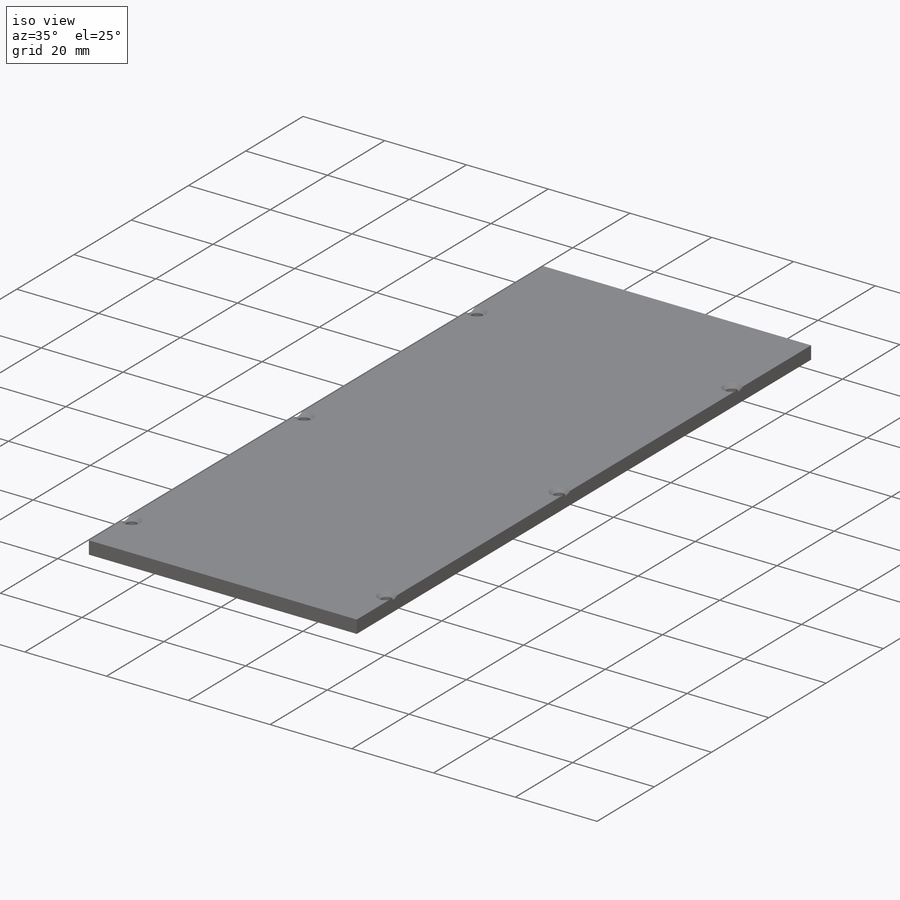
[diagram: iso view]
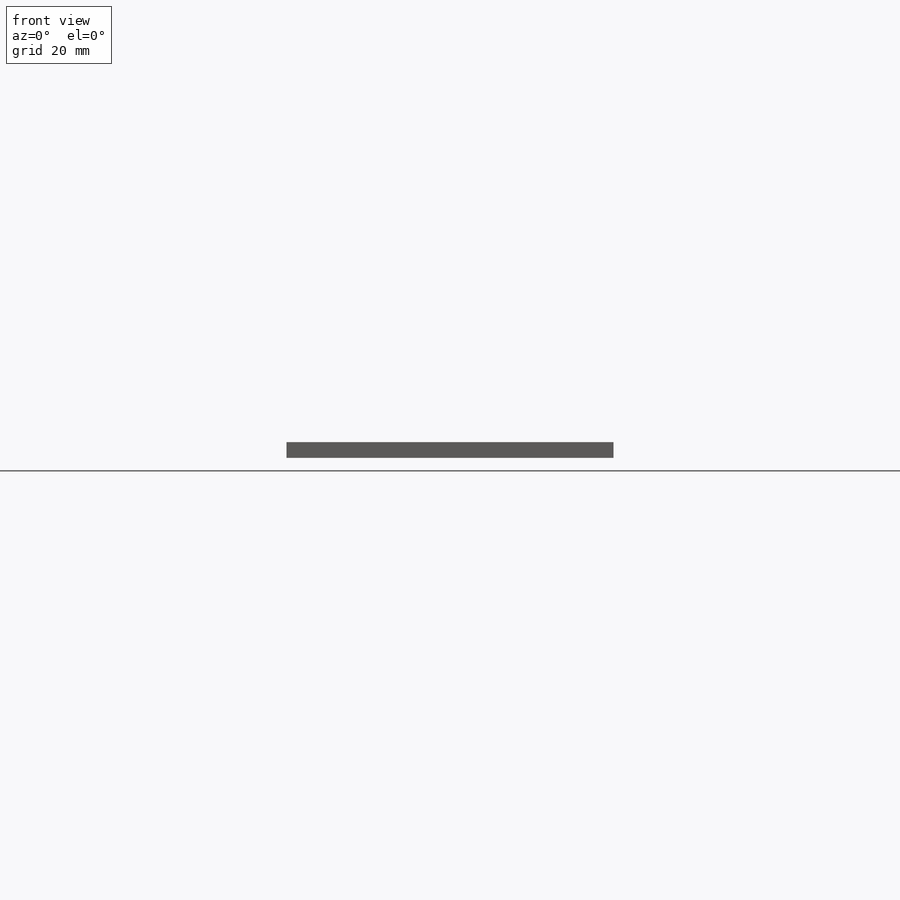
[diagram: front view]
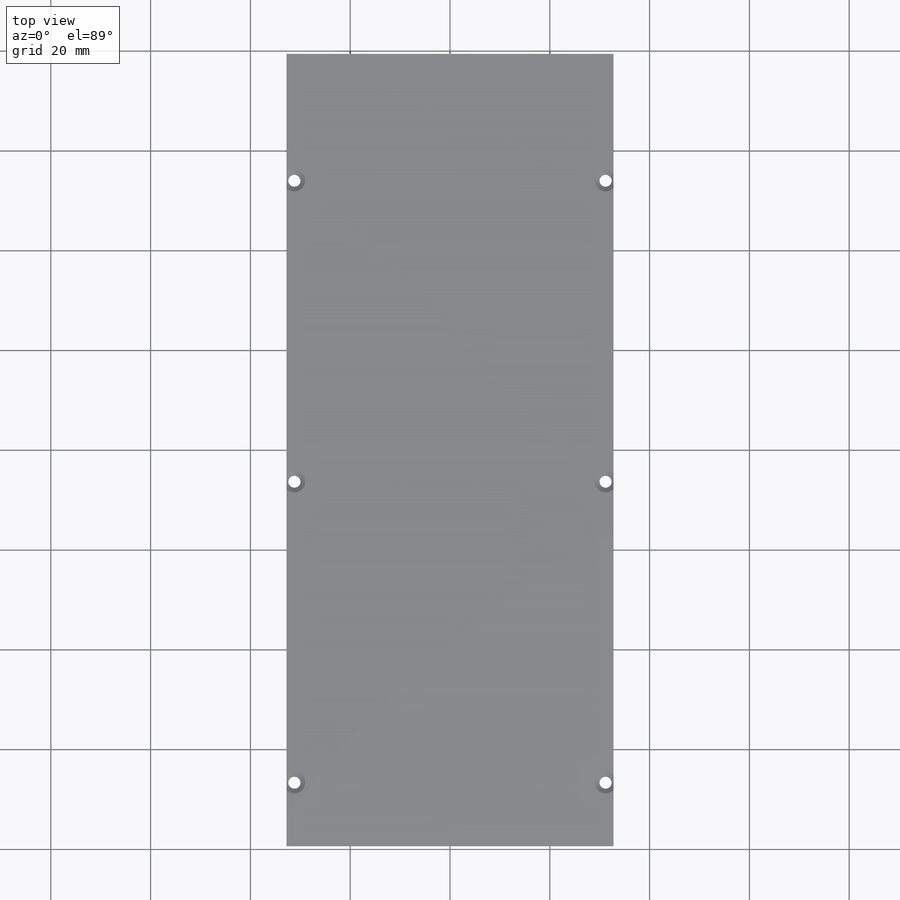
[diagram: top view]
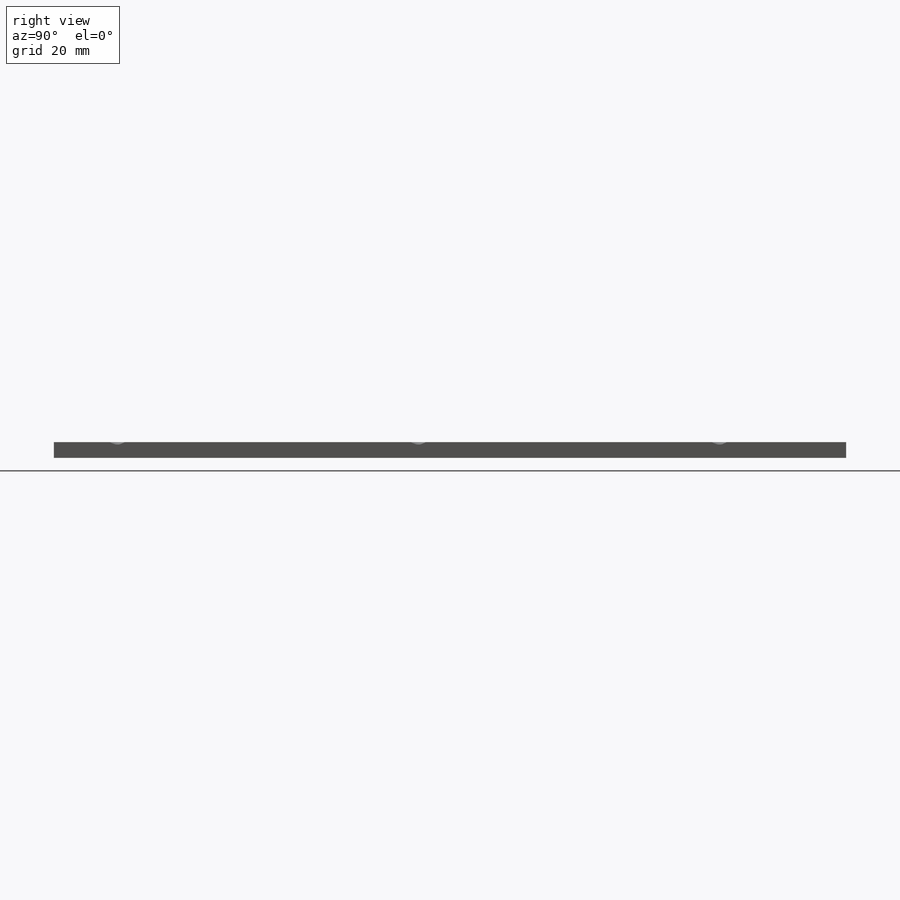
[diagram: right view]
SOLIDWORKS PART (.sldprt)
format: sldprt  version: not decoded by parser v0  size: 211,968 bytes
history: native  units: mm
features: sketch x5, hole x2, material x1, extrude x1 (+11 scaffold rows collapsed)
feature tree (20):
  scaffold x11  (default folders/planes/origin — collapsed)
  material  "Delrin"
  sketch  "Sketch1"  dims[D1=158.75mm D2=79.375mm D3=32.766mm D4=65.532mm]
  extrude  "Extrude1"  Depth=3.175mm
  hole  "CSK for #2 Flat Head Machine Screw (100)1"  Diameter=2.4384mm Depth=3.175mm
  sketch  "3DSketch1"  dims[c1.D1=~1.511296mm c1.D2=1.5875mm c2.D2=~9.223208mm c2.D9=3.175mm c2.D3=~15.06708mm c2.D1=3.175mm c2.D4=~1.490918mm c3.D1=1.5875mm c3.D5=~19.456742mm c4.D1=25.4mm c4.D6=~87.765293mm c5.D1=85.725mm c5.D7=~13.523918mm c6.D1=12.7mm c6.D8=~1.308535mm c7.D1=1.5875mm c7.D9=~1.456419mm c7.D10=1.5875mm c8.D10=~1.841987mm c8.D11=1.5875mm c9.D11=~18.650966mm c9.D17=12.7mm c9.D12=~1.905069mm c10.D11=1.5875mm c10.D13=~83.787487mm c11.D11=85.725mm c11.D14=~20.545254mm c11.D2=25.4mm c11.D15=~1.287814mm c12.D11=1.5875mm c12.D16=~1.589786mm c13.D11=1.5875mm c13.D17=1.5875mm c13.D1=6.35mm c13.D9=6.35mm c13.D2=6.35mm c14.D1=6.35mm c14.D3=1.5875mm c15.D1=1.5875mm c15.D4=1.5875mm c15.D5=1.5875mm c15.D6=12.7mm c15.D7=85.725mm c15.D8=25.4mm]
  sketch  "Sketch2"  dims[hole-wizard template sketch: 59 standard entries collapsed; hole parameters above]
  hole  "Tap Drill for #2 Tap1"  Diameter=1.778mm Depth=6.35mm
  sketch  "3DSketch2"  dims[D1=6.35mm D2=6.35mm D3=1.5875mm D4=1.5875mm]
  sketch  "Sketch3"  dims[hole-wizard template sketch: 50 standard entries collapsed; hole parameters above]
decode coverage: 8 of 8 modeling features carry decoded parameters
note: ~ marks probable driven/reference dimensions
note: suppression state not decoded; provenance and decode notes live in map.json
